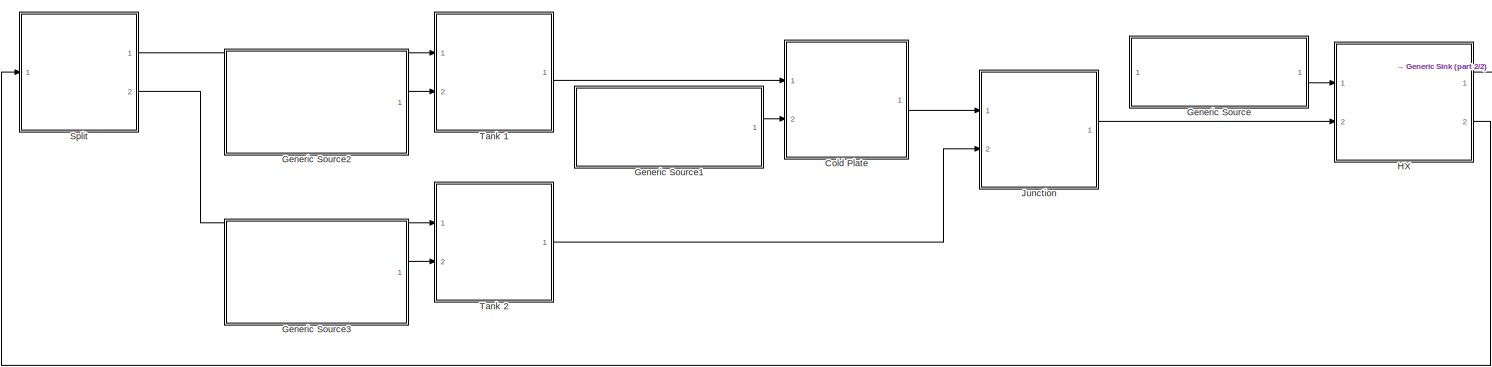
[diagram: root canvas - part 1/2, most of the canvas]
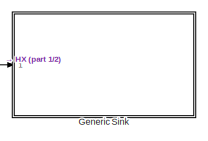
[diagram: root canvas - part 2/2, top right region]
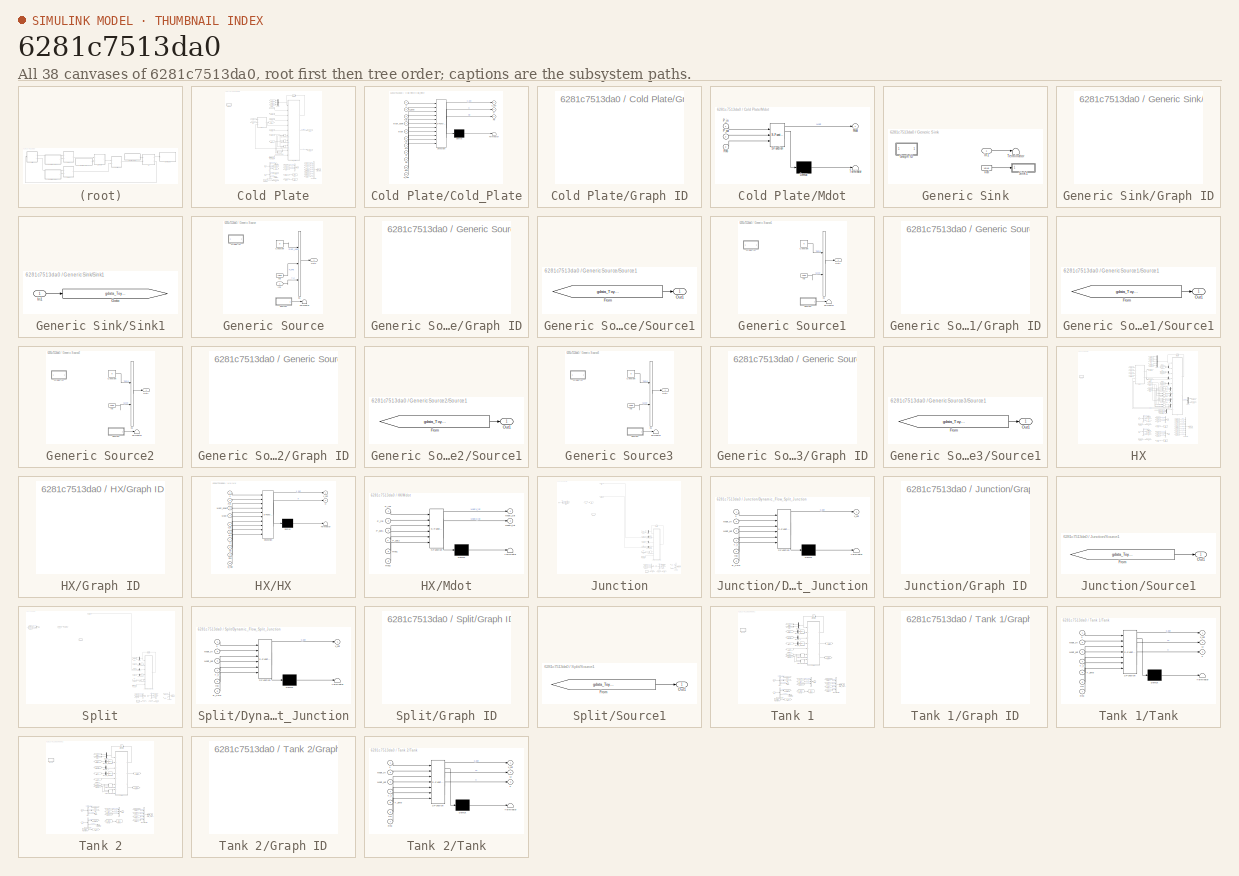
[diagram: thumbnail index - all 38 canvases of the model, root first then tree order]
MODEL slx_6281c7513da0
KIND model
CONFIG AbsTol = auto
CONFIG EnableMultiTasking = off
CONFIG FixedStep = auto
CONFIG MaxStep = auto
CONFIG MinStep = auto
CONFIG RelTol = 1e-3
CONFIG SampleTimeConstraint = Unconstrained
CONFIG Solver = VariableStepAuto
CONFIG SolverName = VariableStepAuto
CONFIG StartTime = 0.0
CONFIG StopTime = 10.0
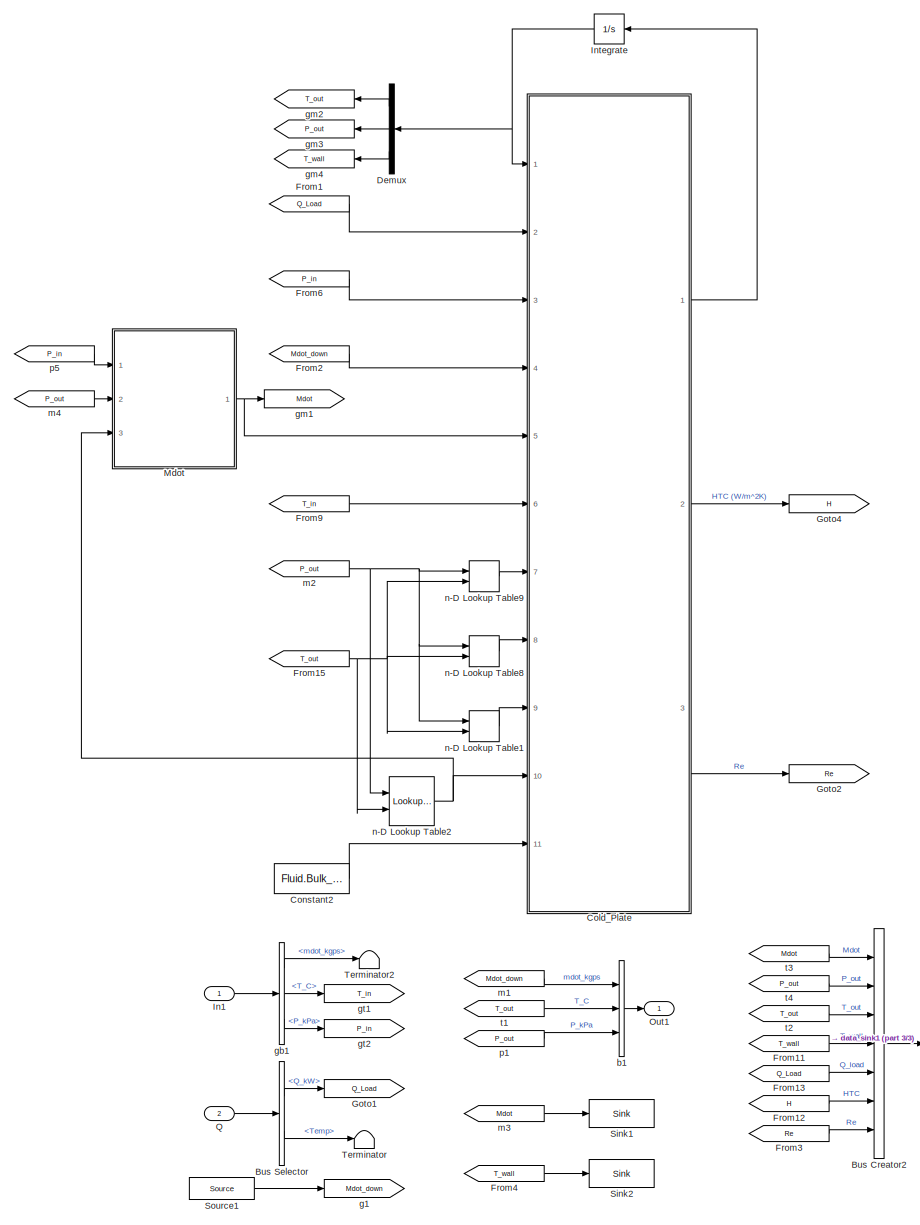
[diagram: Cold Plate - part 1/3, center side, full height]
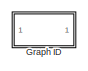
[diagram: Cold Plate - part 2/3, top left region]
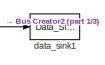
[diagram: Cold Plate - part 3/3, bottom right region]
BLOCK [SubSystem] Cold Plate
  AncestorBlock = DAEMOT_Lib/Thermal/Cold_Plate
  OpenFcn = load('Fluids.mat');\nSet_Fluid_Popup_Names( Fluid )
  Ports = [2, 1]
  RequestExecContextInheritance = off
BLOCK [BusCreator] Cold Plate/Bus Creator2
  DisplayOption = bar
  InheritFromInputs = on
  Inputs = 7
  Ports = [7, 1]
BLOCK [BusSelector] Cold Plate/Bus Selector
  OutputAsBus = off
  OutputSignals = Q_kW,Temp
  Ports = [1, 2]
BLOCK [SubSystem] Cold Plate/Cold_Plate
  Commented = on
  ErrorFcn = Stateflow.Translate.translate
  PermitHierarchicalResolution = ExplicitOnly
  Ports = [11, 3]
  RequestExecContextInheritance = off
  SFBlockType = MATLAB Function
  TreatAsAtomicUnit = on
BLOCK [Demux] Cold Plate/Cold_Plate/ Demux 
  Outputs = 1
  Ports = [1, 1]
BLOCK [S-Function] Cold Plate/Cold_Plate/ SFunction 
  EnableBusSupport = on
  FunctionName = sf_sfun
  Parameters = Cp_wall,D,E,HTC,HTC_method,KL,L,M_wall,PAF,dH,f,t,v
  PortCounts = [11 4]
  Ports = [11, 4]
  SFcnIsStateOwnerBlock = off
  SFunctionDeploymentMode = off
  Tag = Stateflow S-Function 54
BLOCK [Terminator] Cold Plate/Cold_Plate/ Terminator 
BLOCK [Inport] Cold Plate/Cold_Plate/Cp
  IconDisplay = Port number
  Port = 9
BLOCK [Inport] Cold Plate/Cold_Plate/E_fluid
  IconDisplay = Port number
  Port = 11
BLOCK [Outport] Cold Plate/Cold_Plate/H
  IconDisplay = Port number
  Port = 2
  VectorParamsAs1DForOutWhenUnconnected = off
BLOCK [Inport] Cold Plate/Cold_Plate/Mdot
  IconDisplay = Port number
  Port = 5
BLOCK [Inport] Cold Plate/Cold_Plate/Mdot_down
  IconDisplay = Port number
  Port = 4
BLOCK [Inport] Cold Plate/Cold_Plate/P_in
  IconDisplay = Port number
  Port = 3
BLOCK [Inport] Cold Plate/Cold_Plate/Q_load
  IconDisplay = Port number
  Port = 2
BLOCK [Outport] Cold Plate/Cold_Plate/Re
  IconDisplay = Port number
  Port = 3
  VectorParamsAs1DForOutWhenUnconnected = off
BLOCK [Inport] Cold Plate/Cold_Plate/Rho
  IconDisplay = Port number
  Port = 10
BLOCK [Inport] Cold Plate/Cold_Plate/T_in
  IconDisplay = Port number
  Port = 6
BLOCK [Inport] Cold Plate/Cold_Plate/k
  IconDisplay = Port number
  Port = 8
BLOCK [Inport] Cold Plate/Cold_Plate/mu
  IconDisplay = Port number
  Port = 7
BLOCK [Inport] Cold Plate/Cold_Plate/x
  IconDisplay = Port number
BLOCK [Outport] Cold Plate/Cold_Plate/x_dot
  IconDisplay = Port number
  VectorParamsAs1DForOutWhenUnconnected = off
BLOCK [Constant] Cold Plate/Constant2
  Commented = on
  Value = Fluid.Bulk_Mod
BLOCK [Demux] Cold Plate/Demux
  DisplayOption = bar
  Outputs = 3
  Ports = [1, 3]
BLOCK [From] Cold Plate/From1
  CloseFcn = tagdialog Close
  GotoTag = Q_Load
BLOCK [From] Cold Plate/From11
  CloseFcn = tagdialog Close
  GotoTag = T_wall
BLOCK [From] Cold Plate/From12
  CloseFcn = tagdialog Close
  GotoTag = H
BLOCK [From] Cold Plate/From13
  CloseFcn = tagdialog Close
  GotoTag = Q_Load
BLOCK [From] Cold Plate/From15
  CloseFcn = tagdialog Close
  GotoTag = T_out
BLOCK [From] Cold Plate/From2
  CloseFcn = tagdialog Close
  GotoTag = Mdot_down
BLOCK [From] Cold Plate/From3
  CloseFcn = tagdialog Close
  GotoTag = Re
BLOCK [From] Cold Plate/From4
  CloseFcn = tagdialog Close
  GotoTag = T_wall
BLOCK [From] Cold Plate/From6
  CloseFcn = tagdialog Close
  GotoTag = P_in
BLOCK [From] Cold Plate/From9
  CloseFcn = tagdialog Close
  GotoTag = T_in
BLOCK [Goto] Cold Plate/Goto1
  GotoTag = Q_Load
BLOCK [Goto] Cold Plate/Goto2
  GotoTag = Re
BLOCK [Goto] Cold Plate/Goto4
  GotoTag = H
BLOCK [SubSystem] Cold Plate/Graph ID
  Ports = []
  RequestExecContextInheritance = off
BLOCK [Inport] Cold Plate/In1
  IconDisplay = Port number
BLOCK [Integrator] Cold Plate/Integrate
  Commented = on
  InitialCondition = [T_init P_init Tw_init]
  Ports = [1, 1]
BLOCK [SubSystem] Cold Plate/Mdot
  Commented = on
  ErrorFcn = Stateflow.Translate.translate
  PermitHierarchicalResolution = ExplicitOnly
  Ports = [3, 1]
  RequestExecContextInheritance = off
  SFBlockType = MATLAB Function
  TreatAsAtomicUnit = on
BLOCK [Demux] Cold Plate/Mdot/ Demux 
  Outputs = 1
  Ports = [1, 1]
BLOCK [S-Function] Cold Plate/Mdot/ SFunction 
  EnableBusSupport = on
  FunctionName = sf_sfun
  Parameters = D,KL,L,dH,f
  PortCounts = [3 2]
  Ports = [3, 2]
  SFcnIsStateOwnerBlock = off
  SFunctionDeploymentMode = off
  Tag = Stateflow S-Function 55
BLOCK [Terminator] Cold Plate/Mdot/ Terminator 
BLOCK [Outport] Cold Plate/Mdot/Mdot
  IconDisplay = Port number
  VectorParamsAs1DForOutWhenUnconnected = off
BLOCK [Inport] Cold Plate/Mdot/P_in
  IconDisplay = Port number
BLOCK [Inport] Cold Plate/Mdot/P_out
  IconDisplay = Port number
  Port = 2
BLOCK [Inport] Cold Plate/Mdot/Rho
  IconDisplay = Port number
  Port = 3
BLOCK [Outport] Cold Plate/Out1
  IconDisplay = Port number
  VectorParamsAs1DForOutWhenUnconnected = off
BLOCK [Inport] Cold Plate/Q
  IconDisplay = Port number
  Port = 2
BLOCK [Reference] Cold Plate/Sink1  REF=DAEMOT_Lib/Support Functions/Sink
  Ports = [1]
  SourceBlock = DAEMOT_Lib/Support Functions/Sink
  SourceProductName = DAEMOT Toolset
  SourceType = Sink
BLOCK [Reference] Cold Plate/Sink2  REF=DAEMOT_Lib/Support Functions/Sink
  Ports = [1]
  SourceBlock = DAEMOT_Lib/Support Functions/Sink
  SourceProductName = DAEMOT Toolset
  SourceType = Sink
BLOCK [Reference] Cold Plate/Source1  REF=DAEMOT_Lib/Support Functions/Source
  Ports = [0, 1]
  SourceBlock = DAEMOT_Lib/Support Functions/Source
  SourceProductName = DAEMOT Toolset
  SourceType = Source
BLOCK [Terminator] Cold Plate/Terminator
BLOCK [Terminator] Cold Plate/Terminator2
BLOCK [BusCreator] Cold Plate/b1
  DisplayOption = bar
  InheritFromInputs = on
  Inputs = 3
  Ports = [3, 1]
BLOCK [Reference] Cold Plate/data_sink1  REF=DAEMOT_Lib/Support Functions/Data_Sink
  Ports = [1]
  SourceBlock = DAEMOT_Lib/Support Functions/Data_Sink
  SourceProductName = DAEMOT Toolset
  SourceType = Data Sink
BLOCK [Goto] Cold Plate/g1
  GotoTag = Mdot_down
BLOCK [BusSelector] Cold Plate/gb1
  OutputAsBus = off
  OutputSignals = mdot_kgps,T_C,P_kPa
  Ports = [1, 3]
BLOCK [Goto] Cold Plate/gm1
  GotoTag = Mdot
BLOCK [Goto] Cold Plate/gm2
  GotoTag = T_out
BLOCK [Goto] Cold Plate/gm3
  GotoTag = P_out
BLOCK [Goto] Cold Plate/gm4
  GotoTag = T_wall
BLOCK [Goto] Cold Plate/gt1
  GotoTag = T_in
BLOCK [Goto] Cold Plate/gt2
  GotoTag = P_in
BLOCK [From] Cold Plate/m1
  CloseFcn = tagdialog Close
  GotoTag = Mdot_down
BLOCK [From] Cold Plate/m2
  CloseFcn = tagdialog Close
  GotoTag = P_out
BLOCK [From] Cold Plate/m3
  CloseFcn = tagdialog Close
  GotoTag = Mdot
BLOCK [From] Cold Plate/m4
  CloseFcn = tagdialog Close
  GotoTag = P_out
BLOCK [Lookup_n-D] Cold Plate/n-D Lookup Table1
  BreakpointsForDimension1 = Fluid.P
  BreakpointsForDimension2 = Fluid.T
  BreakpointsForDimension3 = [5, 7]
  Commented = on
  ExtrapMethod = Clip
  Ports = [2, 1]
  RndMeth = Simplest
  Table = Fluid.C_pt
  UseLastTableValue = on
BLOCK [Lookup_n-D] Cold Plate/n-D Lookup Table2
  BreakpointsForDimension1 = Fluid.P
  BreakpointsForDimension2 = Fluid.T
  BreakpointsForDimension3 = [5, 7]
  Commented = on
  ExtrapMethod = Clip
  Ports = [2, 1]
  RndMeth = Simplest
  Table = Fluid.Rho_pt
  UseLastTableValue = on
BLOCK [Lookup_n-D] Cold Plate/n-D Lookup Table8
  BreakpointsForDimension1 = Fluid.P
  BreakpointsForDimension2 = Fluid.T
  BreakpointsForDimension3 = [5, 7]
  Commented = on
  ExtrapMethod = Clip
  Ports = [2, 1]
  RndMeth = Simplest
  Table = Fluid.K_pt
  UseLastTableValue = on
BLOCK [Lookup_n-D] Cold Plate/n-D Lookup Table9
  BreakpointsForDimension1 = Fluid.P
  BreakpointsForDimension2 = Fluid.T
  BreakpointsForDimension3 = [5, 7]
  Commented = on
  ExtrapMethod = Clip
  Ports = [2, 1]
  RndMeth = Simplest
  Table = Fluid.Mu_pt
  UseLastTableValue = on
BLOCK [From] Cold Plate/p1
  CloseFcn = tagdialog Close
  GotoTag = P_out
BLOCK [From] Cold Plate/p5
  CloseFcn = tagdialog Close
  GotoTag = P_in
BLOCK [From] Cold Plate/t1
  CloseFcn = tagdialog Close
  GotoTag = T_out
BLOCK [From] Cold Plate/t2
  CloseFcn = tagdialog Close
  GotoTag = T_out
BLOCK [From] Cold Plate/t3
  CloseFcn = tagdialog Close
  GotoTag = Mdot
BLOCK [From] Cold Plate/t4
  CloseFcn = tagdialog Close
  GotoTag = P_out
BLOCK [SubSystem] Generic Sink
  AncestorBlock = DAEMOT_Lib/Support Functions/Generic Sink
  CopyFcn = h      = get_param(gcb,'handle');   % Get block handle\nblk    = gcb; \n\nset_param(blk, 'LinkStatus', 'inactive')\nclear h\nclear blk
  Ports = [1]
  RequestExecContextInheritance = off
BLOCK [SubSystem] Generic Sink/Graph ID
  Ports = []
  RequestExecContextInheritance = off
BLOCK [Inport] Generic Sink/In1
  IconDisplay = Port number
BLOCK [SubSystem] Generic Sink/Sink1
  CopyFcn = rev_comms_sink();
  InitFcn = rev_comms_sink();
  LoadFcn = rev_comms_sink();
  NameChangeFcn = rev_comms_sink();
  Ports = [1]
  RequestExecContextInheritance = off
BLOCK [Goto] Generic Sink/Sink1/Goto
  GotoTag = gdata_ToySystemGenericSinkSink1
  TagVisibility = global
BLOCK [Inport] Generic Sink/Sink1/In1
  IconDisplay = Port number
BLOCK [Terminator] Generic Sink/Terminator
BLOCK [Constant] Generic Sink/val
  Value = value
BLOCK [SubSystem] Generic Source
  AncestorBlock = DAEMOT_Lib/Support Functions/Generic Source
  CopyFcn = h      = get_param(gcb,'handle');   % Get block handle\nblk    = gcb; \n\nset_param(blk, 'LinkStatus', 'inactive')\nclear h\nclear blk
  Ports = [1, 1]
  RequestExecContextInheritance = off
BLOCK [Constant] Generic Source/Constant
  Value = 0
BLOCK [SubSystem] Generic Source/Graph ID
  Ports = []
  RequestExecContextInheritance = off
BLOCK [Inport] Generic Source/In2
  IconDisplay = Port number
BLOCK [Outport] Generic Source/Out1
  IconDisplay = Port number
  VectorParamsAs1DForOutWhenUnconnected = off
BLOCK [SubSystem] Generic Source/Source1
  Ports = [0, 1]
  RequestExecContextInheritance = off
BLOCK [From] Generic Source/Source1/From
  GotoTag = gdata_ToySystemHXSink1
  TagVisibility = global
BLOCK [Outport] Generic Source/Source1/Out1
  IconDisplay = Port number
  VectorParamsAs1DForOutWhenUnconnected = off
BLOCK [Terminator] Generic Source/Terminator
BLOCK [BusCreator] Generic Source/b1
  DisplayOption = bar
  InheritFromInputs = on
  Inputs = 3
  Ports = [3, 1]
BLOCK [Constant] Generic Source/val
  Value = value
BLOCK [SubSystem] Generic Source1
  AncestorBlock = DAEMOT_Lib/Support Functions/Generic Source
  CopyFcn = h      = get_param(gcb,'handle');   % Get block handle\nblk    = gcb; \n\nset_param(blk, 'LinkStatus', 'inactive')\nclear h\nclear blk
  Ports = [0, 1]
  RequestExecContextInheritance = off
BLOCK [Constant] Generic Source1/Constant
  Value = 0
BLOCK [SubSystem] Generic Source1/Graph ID
  Ports = []
  RequestExecContextInheritance = off
BLOCK [Outport] Generic Source1/Out1
  IconDisplay = Port number
  VectorParamsAs1DForOutWhenUnconnected = off
BLOCK [SubSystem] Generic Source1/Source1
  Ports = [0, 1]
  RequestExecContextInheritance = off
BLOCK [From] Generic Source1/Source1/From
  GotoTag = gdata_ToySystemColdPlateSink2
  TagVisibility = global
BLOCK [Outport] Generic Source1/Source1/Out1
  IconDisplay = Port number
  VectorParamsAs1DForOutWhenUnconnected = off
BLOCK [Terminator] Generic Source1/Terminator
BLOCK [BusCreator] Generic Source1/b1
  DisplayOption = bar
  InheritFromInputs = on
  Inputs = 2
  Ports = [2, 1]
BLOCK [Constant] Generic Source1/val
  Value = value
BLOCK [SubSystem] Generic Source2
  AncestorBlock = DAEMOT_Lib/Support Functions/Generic Source
  CopyFcn = h      = get_param(gcb,'handle');   % Get block handle\nblk    = gcb; \n\nset_param(blk, 'LinkStatus', 'inactive')\nclear h\nclear blk
  Ports = [0, 1]
  RequestExecContextInheritance = off
BLOCK [Constant] Generic Source2/Constant
  Value = 0
BLOCK [SubSystem] Generic Source2/Graph ID
  Ports = []
  RequestExecContextInheritance = off
BLOCK [Outport] Generic Source2/Out1
  IconDisplay = Port number
  VectorParamsAs1DForOutWhenUnconnected = off
BLOCK [SubSystem] Generic Source2/Source1
  Ports = [0, 1]
  RequestExecContextInheritance = off
BLOCK [From] Generic Source2/Source1/From
  GotoTag = gdata_ToySystemColdPlateSink2
  TagVisibility = global
BLOCK [Outport] Generic Source2/Source1/Out1
  IconDisplay = Port number
  VectorParamsAs1DForOutWhenUnconnected = off
BLOCK [Terminator] Generic Source2/Terminator
BLOCK [BusCreator] Generic Source2/b1
  DisplayOption = bar
  InheritFromInputs = on
  Inputs = 2
  Ports = [2, 1]
BLOCK [Constant] Generic Source2/val
  Value = value
BLOCK [SubSystem] Generic Source3
  AncestorBlock = DAEMOT_Lib/Support Functions/Generic Source
  CopyFcn = h      = get_param(gcb,'handle');   % Get block handle\nblk    = gcb; \n\nset_param(blk, 'LinkStatus', 'inactive')\nclear h\nclear blk
  Ports = [0, 1]
  RequestExecContextInheritance = off
BLOCK [Constant] Generic Source3/Constant
  Value = 0
BLOCK [SubSystem] Generic Source3/Graph ID
  Ports = []
  RequestExecContextInheritance = off
BLOCK [Outport] Generic Source3/Out1
  IconDisplay = Port number
  VectorParamsAs1DForOutWhenUnconnected = off
BLOCK [SubSystem] Generic Source3/Source1
  Ports = [0, 1]
  RequestExecContextInheritance = off
BLOCK [From] Generic Source3/Source1/From
  GotoTag = gdata_ToySystemColdPlateSink2
  TagVisibility = global
BLOCK [Outport] Generic Source3/Source1/Out1
  IconDisplay = Port number
  VectorParamsAs1DForOutWhenUnconnected = off
BLOCK [Terminator] Generic Source3/Terminator
BLOCK [BusCreator] Generic Source3/b1
  DisplayOption = bar
  InheritFromInputs = on
  Inputs = 2
  Ports = [2, 1]
BLOCK [Constant] Generic Source3/val
  Value = value
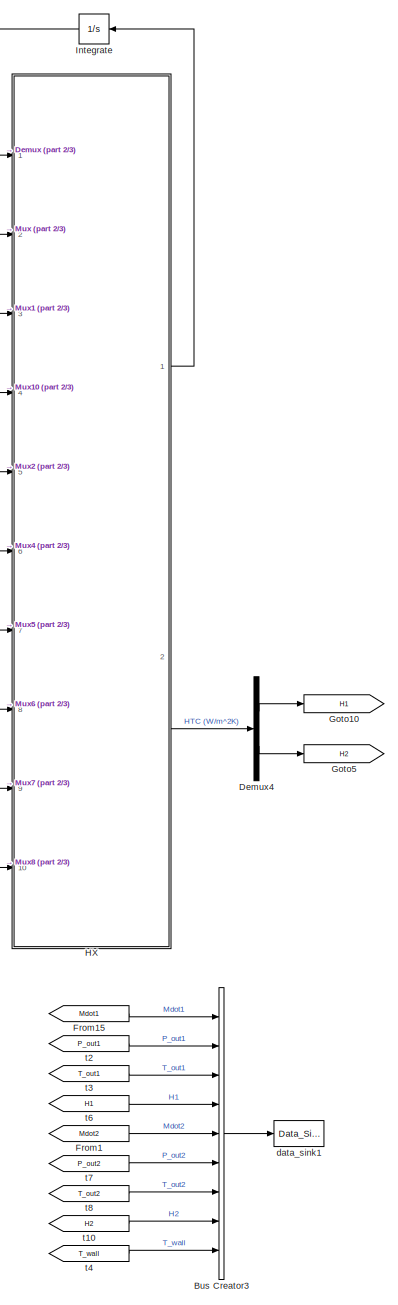
[diagram: HX - part 1/3, right side, full height]
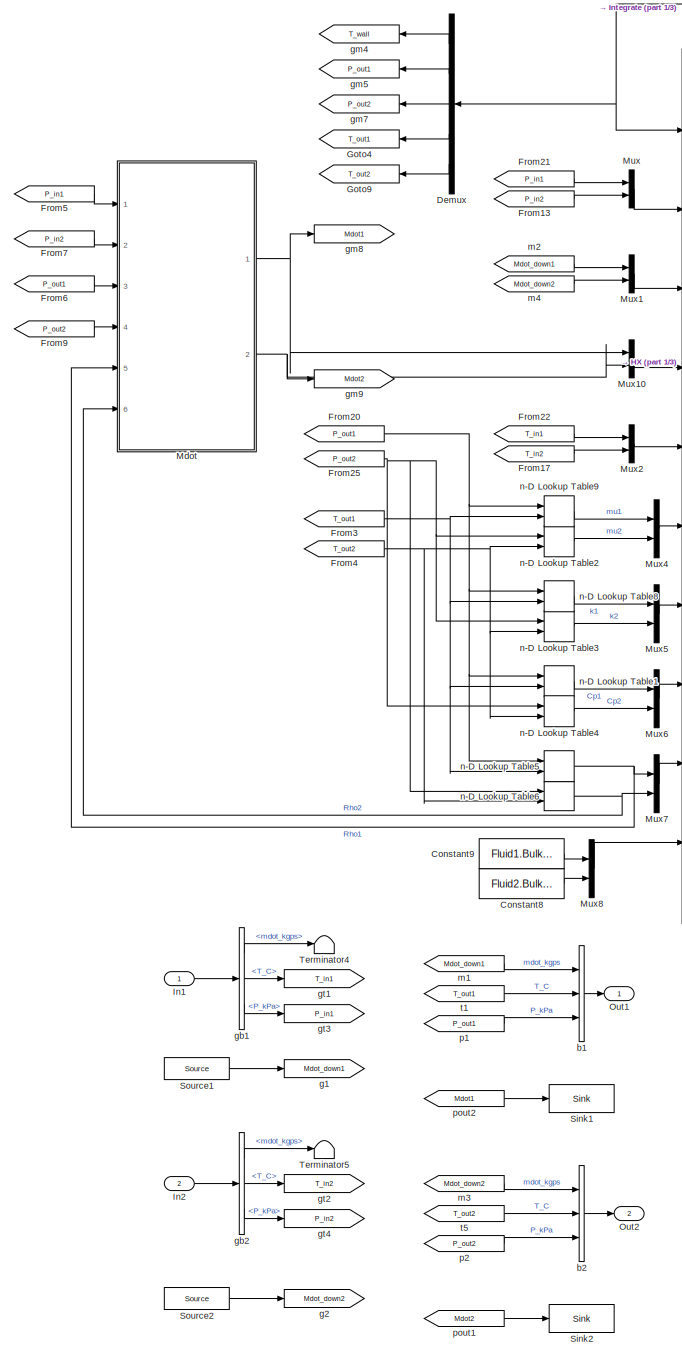
[diagram: HX - part 2/3, center side, full height]
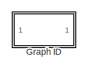
[diagram: HX - part 3/3, top left region]
BLOCK [SubSystem] HX
  AncestorBlock = DAEMOT_Lib/Thermal/Heat Exchanger
  OpenFcn = load('Fluids.mat');\nSet_Fluid_Popup_Names( Fluid )
  Ports = [2, 2]
  RequestExecContextInheritance = off
BLOCK [BusCreator] HX/Bus Creator3
  DisplayOption = bar
  InheritFromInputs = on
  Inputs = 9
  Ports = [9, 1]
BLOCK [Constant] HX/Constant8
  Commented = on
  Value = Fluid2.Bulk_Mod
BLOCK [Constant] HX/Constant9
  Commented = on
  Value = Fluid1.Bulk_Mod
BLOCK [Demux] HX/Demux
  DisplayOption = bar
  Outputs = 5
  Ports = [1, 5]
BLOCK [Demux] HX/Demux4
  DisplayOption = bar
  Outputs = 2
  Ports = [1, 2]
BLOCK [From] HX/From1
  CloseFcn = tagdialog Close
  GotoTag = Mdot2
BLOCK [From] HX/From13
  CloseFcn = tagdialog Close
  GotoTag = P_in2
BLOCK [From] HX/From15
  CloseFcn = tagdialog Close
  GotoTag = Mdot1
BLOCK [From] HX/From17
  CloseFcn = tagdialog Close
  GotoTag = T_in2
BLOCK [From] HX/From20
  CloseFcn = tagdialog Close
  GotoTag = P_out1
BLOCK [From] HX/From21
  CloseFcn = tagdialog Close
  GotoTag = P_in1
BLOCK [From] HX/From22
  CloseFcn = tagdialog Close
  GotoTag = T_in1
BLOCK [From] HX/From25
  CloseFcn = tagdialog Close
  GotoTag = P_out2
BLOCK [From] HX/From3
  CloseFcn = tagdialog Close
  GotoTag = T_out1
BLOCK [From] HX/From4
  CloseFcn = tagdialog Close
  GotoTag = T_out2
BLOCK [From] HX/From5
  CloseFcn = tagdialog Close
  GotoTag = P_in1
BLOCK [From] HX/From6
  CloseFcn = tagdialog Close
  GotoTag = P_out1
BLOCK [From] HX/From7
  CloseFcn = tagdialog Close
  GotoTag = P_in2
BLOCK [From] HX/From9
  CloseFcn = tagdialog Close
  GotoTag = P_out2
BLOCK [Goto] HX/Goto10
  GotoTag = H1
BLOCK [Goto] HX/Goto4
  GotoTag = T_out1
BLOCK [Goto] HX/Goto5
  GotoTag = H2
BLOCK [Goto] HX/Goto9
  GotoTag = T_out2
BLOCK [SubSystem] HX/Graph ID
  Ports = []
  RequestExecContextInheritance = off
BLOCK [SubSystem] HX/HX
  Commented = on
  ErrorFcn = Stateflow.Translate.translate
  PermitHierarchicalResolution = ExplicitOnly
  Ports = [10, 2]
  RequestExecContextInheritance = off
  SFBlockType = MATLAB Function
  TreatAsAtomicUnit = on
BLOCK [Demux] HX/HX/ Demux 
  Outputs = 1
  Ports = [1, 1]
BLOCK [S-Function] HX/HX/ SFunction 
  EnableBusSupport = on
  FunctionName = sf_sfun
  Parameters = Cp_wall,HTC1,HTC2,HTC_method1,HTC_method2,KL1,KL2,L1,L2,M_wall,Nu_lam1,Nu_lam2,Pass1,Pass2,W1,W2,b1,b2,dH1,dH2,f1,f2
  PortCounts = [10 3]
  Ports = [10, 3]
  SFcnIsStateOwnerBlock = off
  SFunctionDeploymentMode = off
  Tag = Stateflow S-Function 4
BLOCK [Terminator] HX/HX/ Terminator 
BLOCK [Inport] HX/HX/Cp
  IconDisplay = Port number
  Port = 8
BLOCK [Inport] HX/HX/E_fluid
  IconDisplay = Port number
  Port = 10
BLOCK [Outport] HX/HX/H
  IconDisplay = Port number
  Port = 2
  VectorParamsAs1DForOutWhenUnconnected = off
BLOCK [Inport] HX/HX/Mdot
  IconDisplay = Port number
  Port = 4
BLOCK [Inport] HX/HX/Mdot_down
  IconDisplay = Port number
  Port = 3
BLOCK [Inport] HX/HX/P_in
  IconDisplay = Port number
  Port = 2
BLOCK [Inport] HX/HX/Rho
  IconDisplay = Port number
  Port = 9
BLOCK [Inport] HX/HX/T_in
  IconDisplay = Port number
  Port = 5
BLOCK [Inport] HX/HX/k
  IconDisplay = Port number
  Port = 7
BLOCK [Inport] HX/HX/mu
  IconDisplay = Port number
  Port = 6
BLOCK [Inport] HX/HX/x
  IconDisplay = Port number
BLOCK [Outport] HX/HX/x_dot
  IconDisplay = Port number
  VectorParamsAs1DForOutWhenUnconnected = off
BLOCK [Inport] HX/In1
  IconDisplay = Port number
BLOCK [Inport] HX/In2
  IconDisplay = Port number
  Port = 2
BLOCK [Integrator] HX/Integrate
  Commented = on
  InitialCondition = [Tw_init P1_init P2_init T1_init T2_init]
  Ports = [1, 1]
BLOCK [SubSystem] HX/Mdot
  Commented = on
  ErrorFcn = Stateflow.Translate.translate
  PermitHierarchicalResolution = ExplicitOnly
  Ports = [6, 2]
  RequestExecContextInheritance = off
  SFBlockType = MATLAB Function
  TreatAsAtomicUnit = on
BLOCK [Demux] HX/Mdot/ Demux 
  Outputs = 1
  Ports = [1, 1]
BLOCK [S-Function] HX/Mdot/ SFunction 
  EnableBusSupport = on
  FunctionName = sf_sfun
  Parameters = KL1,KL2,L1,L2,Pass1,Pass2,W1,W2,b1,b2,dH1,dH2,f1,f2
  PortCounts = [6 3]
  Ports = [6, 3]
  SFcnIsStateOwnerBlock = off
  SFunctionDeploymentMode = off
  Tag = Stateflow S-Function 13
BLOCK [Terminator] HX/Mdot/ Terminator 
BLOCK [Outport] HX/Mdot/Mdot1_tot
  IconDisplay = Port number
  VectorParamsAs1DForOutWhenUnconnected = off
BLOCK [Outport] HX/Mdot/Mdot2_tot
  IconDisplay = Port number
  Port = 2
  VectorParamsAs1DForOutWhenUnconnected = off
BLOCK [Inport] HX/Mdot/P_in1
  IconDisplay = Port number
BLOCK [Inport] HX/Mdot/P_in2
  IconDisplay = Port number
  Port = 2
BLOCK [Inport] HX/Mdot/P_out1
  IconDisplay = Port number
  Port = 3
BLOCK [Inport] HX/Mdot/P_out2
  IconDisplay = Port number
  Port = 4
BLOCK [Inport] HX/Mdot/Rho1
  IconDisplay = Port number
  Port = 5
BLOCK [Inport] HX/Mdot/Rho2
  IconDisplay = Port number
  Port = 6
BLOCK [Mux] HX/Mux
  DisplayOption = bar
  Inputs = 2
  Ports = [2, 1]
BLOCK [Mux] HX/Mux1
  DisplayOption = bar
  Inputs = 2
  Ports = [2, 1]
BLOCK [Mux] HX/Mux10
  DisplayOption = bar
  Inputs = 2
  Ports = [2, 1]
BLOCK [Mux] HX/Mux2
  DisplayOption = bar
  Inputs = 2
  Ports = [2, 1]
BLOCK [Mux] HX/Mux4
  Commented = on
  DisplayOption = bar
  Inputs = 2
  Ports = [2, 1]
BLOCK [Mux] HX/Mux5
  Commented = on
  DisplayOption = bar
  Inputs = 2
  Ports = [2, 1]
BLOCK [Mux] HX/Mux6
  Commented = on
  DisplayOption = bar
  Inputs = 2
  Ports = [2, 1]
BLOCK [Mux] HX/Mux7
  Commented = on
  DisplayOption = bar
  Inputs = 2
  Ports = [2, 1]
BLOCK [Mux] HX/Mux8
  Commented = on
  DisplayOption = bar
  Inputs = 2
  Ports = [2, 1]
BLOCK [Outport] HX/Out1
  IconDisplay = Port number
  VectorParamsAs1DForOutWhenUnconnected = off
BLOCK [Outport] HX/Out2
  IconDisplay = Port number
  Port = 2
  VectorParamsAs1DForOutWhenUnconnected = off
BLOCK [Reference] HX/Sink1  REF=DAEMOT_Lib/Support Functions/Sink
  Ports = [1]
  SourceBlock = DAEMOT_Lib/Support Functions/Sink
  SourceProductName = DAEMOT Toolset
  SourceType = Sink
BLOCK [Reference] HX/Sink2  REF=DAEMOT_Lib/Support Functions/Sink
  Ports = [1]
  SourceBlock = DAEMOT_Lib/Support Functions/Sink
  SourceProductName = DAEMOT Toolset
  SourceType = Sink
BLOCK [Reference] HX/Source1  REF=DAEMOT_Lib/Support Functions/Source
  Ports = [0, 1]
  SourceBlock = DAEMOT_Lib/Support Functions/Source
  SourceProductName = DAEMOT Toolset
  SourceType = Source
BLOCK [Reference] HX/Source2  REF=DAEMOT_Lib/Support Functions/Source
  Ports = [0, 1]
  SourceBlock = DAEMOT_Lib/Support Functions/Source
  SourceProductName = DAEMOT Toolset
  SourceType = Source
BLOCK [Terminator] HX/Terminator4
BLOCK [Terminator] HX/Terminator5
BLOCK [BusCreator] HX/b1
  DisplayOption = bar
  InheritFromInputs = on
  Inputs = 3
  Ports = [3, 1]
BLOCK [BusCreator] HX/b2
  DisplayOption = bar
  InheritFromInputs = on
  Inputs = 3
  Ports = [3, 1]
BLOCK [Reference] HX/data_sink1  REF=DAEMOT_Lib/Support Functions/Data_Sink
  Ports = [1]
  SourceBlock = DAEMOT_Lib/Support Functions/Data_Sink
  SourceProductName = DAEMOT Toolset
  SourceType = Data Sink
BLOCK [Goto] HX/g1
  GotoTag = Mdot_down1
BLOCK [Goto] HX/g2
  GotoTag = Mdot_down2
BLOCK [BusSelector] HX/gb1
  OutputAsBus = off
  OutputSignals = mdot_kgps,T_C,P_kPa
  Ports = [1, 3]
BLOCK [BusSelector] HX/gb2
  OutputAsBus = off
  OutputSignals = mdot_kgps,T_C,P_kPa
  Ports = [1, 3]
BLOCK [Goto] HX/gm4
  GotoTag = T_wall
BLOCK [Goto] HX/gm5
  GotoTag = P_out1
BLOCK [Goto] HX/gm7
  GotoTag = P_out2
BLOCK [Goto] HX/gm8
  GotoTag = Mdot1
BLOCK [Goto] HX/gm9
  GotoTag = Mdot2
BLOCK [Goto] HX/gt1
  GotoTag = T_in1
BLOCK [Goto] HX/gt2
  GotoTag = T_in2
BLOCK [Goto] HX/gt3
  GotoTag = P_in1
BLOCK [Goto] HX/gt4
  GotoTag = P_in2
BLOCK [From] HX/m1
  CloseFcn = tagdialog Close
  GotoTag = Mdot_down1
BLOCK [From] HX/m2
  CloseFcn = tagdialog Close
  GotoTag = Mdot_down1
BLOCK [From] HX/m3
  CloseFcn = tagdialog Close
  GotoTag = Mdot_down2
BLOCK [From] HX/m4
  CloseFcn = tagdialog Close
  GotoTag = Mdot_down2
BLOCK [Lookup_n-D] HX/n-D Lookup Table1
  BreakpointsForDimension1 = Fluid1.P
  BreakpointsForDimension2 = Fluid1.T
  BreakpointsForDimension3 = [5, 7]
  Commented = on
  ExtrapMethod = Clip
  Ports = [2, 1]
  RndMeth = Simplest
  Table = Fluid1.C_pt
BLOCK [Lookup_n-D] HX/n-D Lookup Table2
  BreakpointsForDimension1 = Fluid2.P
  BreakpointsForDimension2 = Fluid2.T
  BreakpointsForDimension3 = [5, 7]
  Commented = on
  ExtrapMethod = Clip
  Ports = [2, 1]
  RndMeth = Simplest
  Table = Fluid2.Mu_pt
  UseLastTableValue = on
BLOCK [Lookup_n-D] HX/n-D Lookup Table3
  BreakpointsForDimension1 = Fluid2.P
  BreakpointsForDimension2 = Fluid2.T
  BreakpointsForDimension3 = [5, 7]
  Commented = on
  ExtrapMethod = Clip
  Ports = [2, 1]
  RndMeth = Simplest
  Table = Fluid2.K_pt
  UseLastTableValue = on
BLOCK [Lookup_n-D] HX/n-D Lookup Table4
  BreakpointsForDimension1 = Fluid2.P
  BreakpointsForDimension2 = Fluid2.T
  BreakpointsForDimension3 = [5, 7]
  Commented = on
  ExtrapMethod = Clip
  Ports = [2, 1]
  RndMeth = Simplest
  Table = Fluid2.C_pt
  UseLastTableValue = on
BLOCK [Lookup_n-D] HX/n-D Lookup Table5
  BreakpointsForDimension1 = Fluid1.P
  BreakpointsForDimension2 = Fluid1.T
  BreakpointsForDimension3 = [5, 7]
  Commented = on
  ExtrapMethod = Clip
  Ports = [2, 1]
  RndMeth = Simplest
  Table = Fluid1.Rho_pt
  UseLastTableValue = on
BLOCK [Lookup_n-D] HX/n-D Lookup Table6
  BreakpointsForDimension1 = Fluid2.P
  BreakpointsForDimension2 = Fluid2.T
  BreakpointsForDimension3 = [5, 7]
  Commented = on
  ExtrapMethod = Clip
  Ports = [2, 1]
  RndMeth = Simplest
  Table = Fluid2.Rho_pt
  UseLastTableValue = on
BLOCK [Lookup_n-D] HX/n-D Lookup Table8
  BreakpointsForDimension1 = Fluid1.P
  BreakpointsForDimension2 = Fluid1.T
  BreakpointsForDimension3 = [5, 7]
  Commented = on
  ExtrapMethod = Clip
  Ports = [2, 1]
  RndMeth = Simplest
  Table = Fluid1.K_pt
  UseLastTableValue = on
BLOCK [Lookup_n-D] HX/n-D Lookup Table9
  BreakpointsForDimension1 = Fluid1.P
  BreakpointsForDimension2 = Fluid1.T
  BreakpointsForDimension3 = [5, 7]
  Commented = on
  ExtrapMethod = Clip
  Ports = [2, 1]
  RndMeth = Simplest
  Table = Fluid1.Mu_pt
  UseLastTableValue = on
BLOCK [From] HX/p1
  CloseFcn = tagdialog Close
  GotoTag = P_out1
BLOCK [From] HX/p2
  CloseFcn = tagdialog Close
  GotoTag = P_out2
BLOCK [From] HX/pout1
  GotoTag = Mdot2
BLOCK [From] HX/pout2
  GotoTag = Mdot1
BLOCK [From] HX/t1
  CloseFcn = tagdialog Close
  GotoTag = T_out1
BLOCK [From] HX/t10
  CloseFcn = tagdialog Close
  GotoTag = H2
BLOCK [From] HX/t2
  CloseFcn = tagdialog Close
  GotoTag = P_out1
BLOCK [From] HX/t3
  CloseFcn = tagdialog Close
  GotoTag = T_out1
BLOCK [From] HX/t4
  CloseFcn = tagdialog Close
  GotoTag = T_wall
BLOCK [From] HX/t5
  CloseFcn = tagdialog Close
  GotoTag = T_out2
BLOCK [From] HX/t6
  CloseFcn = tagdialog Close
  GotoTag = H1
BLOCK [From] HX/t7
  CloseFcn = tagdialog Close
  GotoTag = P_out2
BLOCK [From] HX/t8
  CloseFcn = tagdialog Close
  GotoTag = T_out2
BLOCK [SubSystem] Junction
  AncestorBlock = DAEMOT_Lib/Thermal/Flow Split_Junction
  CopyFcn = h      = get_param(gcb,'handle');   % Get block handle\nblk    = gcb; \n\nset_param(blk, 'LinkStatus', 'inactive')
  OpenFcn = load('Fluids.mat');\nSet_Fluid_Popup_Names( Fluid )
  Ports = [2, 1]
  RequestExecContextInheritance = off
BLOCK [BusCreator] Junction/Bus Creator2
  DisplayOption = bar
  InheritFromInputs = on
  Inputs = 2
  Ports = [2, 1]
BLOCK [Constant] Junction/Constant5
  Commented = on
  Value = Fluid.Bulk_Mod
BLOCK [Demux] Junction/Demux
  DisplayOption = bar
  Outputs = 2
  Ports = [1, 2]
BLOCK [SubSystem] Junction/Dynamic_Flow_Split_Junction
  Commented = on
  ErrorFcn = Stateflow.Translate.translate
  PermitHierarchicalResolution = ExplicitOnly
  Ports = [6, 1]
  RequestExecContextInheritance = off
  SFBlockType = MATLAB Function
  TreatAsAtomicUnit = on
BLOCK [Demux] Junction/Dynamic_Flow_Split_Junction/ Demux 
  Outputs = 1
  Ports = [1, 1]
BLOCK [S-Function] Junction/Dynamic_Flow_Split_Junction/ SFunction 
  EnableBusSupport = on
  FunctionName = sf_sfun
  Parameters = D,E,L,t,v
  PortCounts = [6 2]
  Ports = [6, 2]
  SFcnIsStateOwnerBlock = off
  SFunctionDeploymentMode = off
  Tag = Stateflow S-Function 2
BLOCK [Terminator] Junction/Dynamic_Flow_Split_Junction/ Terminator 
BLOCK [Inport] Junction/Dynamic_Flow_Split_Junction/E_fluid
  IconDisplay = Port number
  Port = 6
BLOCK [Inport] Junction/Dynamic_Flow_Split_Junction/Mdot_in
  IconDisplay = Port number
  Port = 2
BLOCK [Inport] Junction/Dynamic_Flow_Split_Junction/Mdot_out
  IconDisplay = Port number
  Port = 3
BLOCK [Inport] Junction/Dynamic_Flow_Split_Junction/T_in
  IconDisplay = Port number
  Port = 4
BLOCK [Inport] Junction/Dynamic_Flow_Split_Junction/rho
  IconDisplay = Port number
  Port = 5
BLOCK [Inport] Junction/Dynamic_Flow_Split_Junction/x
  IconDisplay = Port number
BLOCK [Outport] Junction/Dynamic_Flow_Split_Junction/x_dot
  IconDisplay = Port number
  VectorParamsAs1DForOutWhenUnconnected = off
BLOCK [From] Junction/From11
  CloseFcn = tagdialog Close
  GotoTag = T
BLOCK [From] Junction/From12
  CloseFcn = tagdialog Close
  GotoTag = P
BLOCK [Goto] Junction/From13
  GotoTag = P
BLOCK [Goto] Junction/From14
  GotoTag = T
BLOCK [SubSystem] Junction/Graph ID
  Ports = []
  RequestExecContextInheritance = off
BLOCK [Inport] Junction/In1
  IconDisplay = Port number
BLOCK [Inport] Junction/In2
  IconDisplay = Port number
  Port = 2
BLOCK [Integrator] Junction/Integrator1
  Commented = on
  InitialCondition = [T_init P_init]
  Ports = [1, 1]
BLOCK [Mux] Junction/Mux_In_1
  DisplayOption = bar
  Inputs = 2
  Ports = [2, 1]
BLOCK [Mux] Junction/Mux_In_2
  DisplayOption = bar
  Inputs = 1
  Ports = [1, 1]
BLOCK [Mux] Junction/Mux_In_3
  DisplayOption = bar
  Inputs = 2
  Ports = [2, 1]
BLOCK [Outport] Junction/Out1
  IconDisplay = Port number
  VectorParamsAs1DForOutWhenUnconnected = off
BLOCK [From] Junction/Prho
  CloseFcn = tagdialog Close
  GotoTag = P
BLOCK [Selector] Junction/Selector1
  IndexOptions = Index vector (dialog)
  Indices = [1 2 ]
  InputPortWidth = 2
  OutputSizes = 1
  Ports = [1, 1]
BLOCK [Selector] Junction/Selector2
  IndexOptions = Index vector (dialog)
  Indices = [1 2 ]
  InputPortWidth = 2
  OutputSizes = 1
  Ports = [1, 1]
BLOCK [Reference] Junction/Sink1  REF=DAEMOT_Lib/Support Functions/Sink
  Ports = [1]
  SourceBlock = DAEMOT_Lib/Support Functions/Sink
  SourceProductName = DAEMOT Toolset
  SourceType = Sink
BLOCK [Reference] Junction/Sink2  REF=DAEMOT_Lib/Support Functions/Sink
  Ports = [1]
  SourceBlock = DAEMOT_Lib/Support Functions/Sink
  SourceProductName = DAEMOT Toolset
  SourceType = Sink
BLOCK [SubSystem] Junction/Source1
  Ports = [0, 1]
  RequestExecContextInheritance = off
BLOCK [From] Junction/Source1/From
  GotoTag = gdata_ToySystemHXSink2
  TagVisibility = global
BLOCK [Outport] Junction/Source1/Out1
  IconDisplay = Port number
  VectorParamsAs1DForOutWhenUnconnected = off
BLOCK [From] Junction/Trho
  CloseFcn = tagdialog Close
  GotoTag = T
BLOCK [BusCreator] Junction/b1
  DisplayOption = bar
  InheritFromInputs = on
  Inputs = 3
  Ports = [3, 1]
BLOCK [Reference] Junction/data_sink1  REF=DAEMOT_Lib/Support Functions/Data_Sink
  Ports = [1]
  SourceBlock = DAEMOT_Lib/Support Functions/Data_Sink
  SourceProductName = DAEMOT Toolset
  SourceType = Data Sink
BLOCK [Goto] Junction/g1
  GotoTag = M_out1
BLOCK [BusSelector] Junction/gb1
  OutputAsBus = off
  OutputSignals = mdot_kgps,T_C,P_kPa
  Ports = [1, 3]
BLOCK [BusSelector] Junction/gb2
  OutputAsBus = off
  OutputSignals = mdot_kgps,T_C,P_kPa
  Ports = [1, 3]
BLOCK [Goto] Junction/gm1
  GotoTag = M_in1
BLOCK [Goto] Junction/gm2
  GotoTag = M_in2
BLOCK [Terminator] Junction/gp1
BLOCK [Terminator] Junction/gp2
BLOCK [Goto] Junction/gt1
  GotoTag = T_in1
BLOCK [Goto] Junction/gt2
  GotoTag = T_in2
BLOCK [From] Junction/m1
  CloseFcn = tagdialog Close
  GotoTag = M_out1
BLOCK [From] Junction/min1
  CloseFcn = tagdialog Close
  GotoTag = M_in1
BLOCK [From] Junction/min2
  GotoTag = M_in2
BLOCK [From] Junction/mout1
  GotoTag = M_out1
BLOCK [Lookup_n-D] Junction/n-D Lookup Table2
  BreakpointsForDimension1 = Fluid.P
  BreakpointsForDimension2 = Fluid.T
  BreakpointsForDimension3 = [5, 7]
  Commented = on
  ExtrapMethod = Clip
  Ports = [2, 1]
  RndMeth = Simplest
  Table = Fluid.Rho_pt
  UseLastTableValue = on
BLOCK [From] Junction/p1
  CloseFcn = tagdialog Close
  GotoTag = P
BLOCK [From] Junction/pout1
  GotoTag = P
BLOCK [From] Junction/pout2
  GotoTag = P
BLOCK [From] Junction/t1
  CloseFcn = tagdialog Close
  GotoTag = T
BLOCK [From] Junction/tin1
  GotoTag = T_in1
BLOCK [From] Junction/tin2
  GotoTag = T_in2
BLOCK [SubSystem] Split
  AncestorBlock = DAEMOT_Lib/Thermal/Flow Split_Junction
  CopyFcn = h      = get_param(gcb,'handle');   % Get block handle\nblk    = gcb; \n\nset_param(blk, 'LinkStatus', 'inactive')
  OpenFcn = load('Fluids.mat');\nSet_Fluid_Popup_Names( Fluid )
  Ports = [1, 2]
  RequestExecContextInheritance = off
BLOCK [BusCreator] Split/Bus Creator2
  DisplayOption = bar
  InheritFromInputs = on
  Inputs = 2
  Ports = [2, 1]
BLOCK [Constant] Split/Constant5
  Commented = on
  Value = Fluid.Bulk_Mod
BLOCK [Demux] Split/Demux
  DisplayOption = bar
  Outputs = 2
  Ports = [1, 2]
BLOCK [SubSystem] Split/Dynamic_Flow_Split_Junction
  Commented = on
  ErrorFcn = Stateflow.Translate.translate
  PermitHierarchicalResolution = ExplicitOnly
  Ports = [6, 1]
  RequestExecContextInheritance = off
  SFBlockType = MATLAB Function
  TreatAsAtomicUnit = on
BLOCK [Demux] Split/Dynamic_Flow_Split_Junction/ Demux 
  Outputs = 1
  Ports = [1, 1]
BLOCK [S-Function] Split/Dynamic_Flow_Split_Junction/ SFunction 
  EnableBusSupport = on
  FunctionName = sf_sfun
  Parameters = D,E,L,t,v
  PortCounts = [6 2]
  Ports = [6, 2]
  SFcnIsStateOwnerBlock = off
  SFunctionDeploymentMode = off
  Tag = Stateflow S-Function 3
BLOCK [Terminator] Split/Dynamic_Flow_Split_Junction/ Terminator 
BLOCK [Inport] Split/Dynamic_Flow_Split_Junction/E_fluid
  IconDisplay = Port number
  Port = 6
BLOCK [Inport] Split/Dynamic_Flow_Split_Junction/Mdot_in
  IconDisplay = Port number
  Port = 2
BLOCK [Inport] Split/Dynamic_Flow_Split_Junction/Mdot_out
  IconDisplay = Port number
  Port = 3
BLOCK [Inport] Split/Dynamic_Flow_Split_Junction/T_in
  IconDisplay = Port number
  Port = 4
BLOCK [Inport] Split/Dynamic_Flow_Split_Junction/rho
  IconDisplay = Port number
  Port = 5
BLOCK [Inport] Split/Dynamic_Flow_Split_Junction/x
  IconDisplay = Port number
BLOCK [Outport] Split/Dynamic_Flow_Split_Junction/x_dot
  IconDisplay = Port number
  VectorParamsAs1DForOutWhenUnconnected = off
BLOCK [From] Split/From11
  CloseFcn = tagdialog Close
  GotoTag = T
BLOCK [From] Split/From12
  CloseFcn = tagdialog Close
  GotoTag = P
BLOCK [Goto] Split/From13
  GotoTag = P
BLOCK [Goto] Split/From14
  GotoTag = T
BLOCK [SubSystem] Split/Graph ID
  Ports = []
  RequestExecContextInheritance = off
BLOCK [Inport] Split/In1
  IconDisplay = Port number
BLOCK [Integrator] Split/Integrator1
  Commented = on
  InitialCondition = [T_init P_init]
  Ports = [1, 1]
BLOCK [Mux] Split/Mux_In_1
  DisplayOption = bar
  Inputs = 1
  Ports = [1, 1]
BLOCK [Mux] Split/Mux_In_2
  DisplayOption = bar
  Inputs = 2
  Ports = [2, 1]
BLOCK [Mux] Split/Mux_In_3
  DisplayOption = bar
  Inputs = 1
  Ports = [1, 1]
BLOCK [Outport] Split/Out1
  IconDisplay = Port number
  VectorParamsAs1DForOutWhenUnconnected = off
BLOCK [Outport] Split/Out2
  IconDisplay = Port number
  Port = 2
BLOCK [From] Split/Prho
  CloseFcn = tagdialog Close
  GotoTag = P
BLOCK [Selector] Split/Selector1
  IndexOptions = Index vector (dialog)
  Indices = [1 ]
  InputPortWidth = 1
  OutputSizes = 1
  Ports = [1, 1]
BLOCK [Selector] Split/Selector2
  IndexOptions = Index vector (dialog)
  Indices = [1 ]
  InputPortWidth = 1
  OutputSizes = 1
  Ports = [1, 1]
BLOCK [Reference] Split/Sink1  REF=DAEMOT_Lib/Support Functions/Sink
  Ports = [1]
  SourceBlock = DAEMOT_Lib/Support Functions/Sink
  SourceProductName = DAEMOT Toolset
  SourceType = Sink
BLOCK [SubSystem] Split/Source1
  Ports = [0, 1]
  RequestExecContextInheritance = off
BLOCK [From] Split/Source1/From
  GotoTag = gdata_ToySystemTank1Sink1
  TagVisibility = global
BLOCK [Outport] Split/Source1/Out1
  IconDisplay = Port number
  VectorParamsAs1DForOutWhenUnconnected = off
BLOCK [Reference] Split/Source2  REF=DAEMOT_Lib/Support Functions/Source
  Ports = [0, 1]
  SourceBlock = DAEMOT_Lib/Support Functions/Source
  SourceProductName = DAEMOT Toolset
  SourceType = Source
BLOCK [From] Split/Trho
  CloseFcn = tagdialog Close
  GotoTag = T
BLOCK [BusCreator] Split/b1
  DisplayOption = bar
  InheritFromInputs = on
  Inputs = 3
  Ports = [3, 1]
BLOCK [BusCreator] Split/b2
  DisplayOption = bar
  InheritFromInputs = on
  Inputs = 3
  Ports = [3, 1]
BLOCK [Reference] Split/data_sink1  REF=DAEMOT_Lib/Support Functions/Data_Sink
  Ports = [1]
  SourceBlock = DAEMOT_Lib/Support Functions/Data_Sink
  SourceProductName = DAEMOT Toolset
  SourceType = Data Sink
BLOCK [Goto] Split/g1
  GotoTag = M_out1
BLOCK [Goto] Split/g2
  GotoTag = M_out2
BLOCK [BusSelector] Split/gb1
  OutputAsBus = off
  OutputSignals = mdot_kgps,T_C,P_kPa
  Ports = [1, 3]
BLOCK [Goto] Split/gm1
  GotoTag = M_in1
BLOCK [Terminator] Split/gp1
BLOCK [Goto] Split/gt1
  GotoTag = T_in1
BLOCK [From] Split/m1
  CloseFcn = tagdialog Close
  GotoTag = M_out1
BLOCK [From] Split/m2
  GotoTag = M_out2
BLOCK [From] Split/min1
  CloseFcn = tagdialog Close
  GotoTag = M_in1
BLOCK [From] Split/mout1
  GotoTag = M_out1
BLOCK [From] Split/mout2
  GotoTag = M_out2
BLOCK [Lookup_n-D] Split/n-D Lookup Table2
  BreakpointsForDimension1 = Fluid.P
  BreakpointsForDimension2 = Fluid.T
  BreakpointsForDimension3 = [5, 7]
  Commented = on
  ExtrapMethod = Clip
  Ports = [2, 1]
  RndMeth = Simplest
  Table = Fluid.Rho_pt
  UseLastTableValue = on
BLOCK [From] Split/p1
  CloseFcn = tagdialog Close
  GotoTag = P
BLOCK [From] Split/p2
  GotoTag = P
BLOCK [From] Split/pout1
  GotoTag = P
BLOCK [From] Split/t1
  CloseFcn = tagdialog Close
  GotoTag = T
BLOCK [From] Split/t2
  GotoTag = T
BLOCK [From] Split/tin1
  GotoTag = T_in1
BLOCK [SubSystem] Tank 1
  AncestorBlock = DAEMOT_Lib/Thermal/Multi-Port Fluid Tank
  CopyFcn = h      = get_param(gcb,'handle');   % Get block handle\nblk    = gcb; \n\nset_param(blk, 'LinkStatus', 'inactive')
  OpenFcn = load('Fluids.mat');\nSet_Fluid_Popup_Names( Fluid )
  Ports = [2, 1]
  RequestExecContextInheritance = off
BLOCK [BusCreator] Tank 1/Bus Creator2
  DisplayOption = bar
  InheritFromInputs = on
  Inputs = 4
  Ports = [4, 1]
BLOCK [BusSelector] Tank 1/Bus Selector
  OutputAsBus = off
  OutputSignals = Q_kW,Temp
  Ports = [1, 2]
BLOCK [Demux] Tank 1/Demux
  DisplayOption = bar
  Outputs = 2
  Ports = [1, 2]
BLOCK [From] Tank 1/From11
  CloseFcn = tagdialog Close
  GotoTag = T_tank
BLOCK [From] Tank 1/From12
  CloseFcn = tagdialog Close
  GotoTag = P_tank
BLOCK [From] Tank 1/From13
  CloseFcn = tagdialog Close
  GotoTag = M_tank
BLOCK [From] Tank 1/From14
  CloseFcn = tagdialog Close
  GotoTag = h_tank
BLOCK [From] Tank 1/From16
  CloseFcn = tagdialog Close
  GotoTag = P_tank
BLOCK [From] Tank 1/From2
  CloseFcn = tagdialog Close
  GotoTag = T_tank
BLOCK [Goto] Tank 1/Goto1
  GotoTag = Q_Load
BLOCK [Goto] Tank 1/Goto2
  GotoTag = M_tank
BLOCK [Goto] Tank 1/Goto4
  GotoTag = h_tank
BLOCK [SubSystem] Tank 1/Graph ID
  Ports = []
  RequestExecContextInheritance = off
BLOCK [Inport] Tank 1/In1
  IconDisplay = Port number
BLOCK [Integrator] Tank 1/Integrate
  Commented = on
  InitialCondition = [T_init P_init]
  Ports = [1, 1]
BLOCK [Mux] Tank 1/Mux_In_1
  DisplayOption = bar
  Inputs = 1
  Ports = [1, 1]
BLOCK [Mux] Tank 1/Mux_In_2
  DisplayOption = bar
  Inputs = 1
  Ports = [1, 1]
BLOCK [Mux] Tank 1/Mux_In_3
  DisplayOption = bar
  Inputs = 1
  Ports = [1, 1]
BLOCK [Outport] Tank 1/Out1
  IconDisplay = Port number
  VectorParamsAs1DForOutWhenUnconnected = off
BLOCK [Inport] Tank 1/Q
  IconDisplay = Port number
  Port = 2
BLOCK [Selector] Tank 1/Selector1
  IndexOptions = Index vector (dialog)
  Indices = [1 ]
  InputPortWidth = 1
  OutputSizes = 1
  Ports = [1, 1]
BLOCK [Selector] Tank 1/Selector2
  IndexOptions = Index vector (dialog)
  Indices = [1 ]
  InputPortWidth = 1
  OutputSizes = 1
  Ports = [1, 1]
BLOCK [Reference] Tank 1/Sink1  REF=DAEMOT_Lib/Support Functions/Sink
  Ports = [1]
  SourceBlock = DAEMOT_Lib/Support Functions/Sink
  SourceProductName = DAEMOT Toolset
  SourceType = Sink
BLOCK [Reference] Tank 1/Source1  REF=DAEMOT_Lib/Support Functions/Source
  Ports = [0, 1]
  SourceBlock = DAEMOT_Lib/Support Functions/Source
  SourceProductName = DAEMOT Toolset
  SourceType = Source
BLOCK [SubSystem] Tank 1/Tank
  Commented = on
  ErrorFcn = Stateflow.Translate.translate
  PermitHierarchicalResolution = ExplicitOnly
  Ports = [7, 3]
  RequestExecContextInheritance = off
  SFBlockType = MATLAB Function
  TreatAsAtomicUnit = on
BLOCK [Demux] Tank 1/Tank/ Demux 
  Outputs = 1
  Ports = [1, 1]
BLOCK [S-Function] Tank 1/Tank/ SFunction 
  EnableBusSupport = on
  FunctionName = sf_sfun
  Parameters = D,H,Pamb
  PortCounts = [7 4]
  Ports = [7, 4]
  SFcnIsStateOwnerBlock = off
  SFunctionDeploymentMode = off
  Tag = Stateflow S-Function 22
BLOCK [Terminator] Tank 1/Tank/ Terminator 
BLOCK [Inport] Tank 1/Tank/Cp
  IconDisplay = Port number
  Port = 6
BLOCK [Outport] Tank 1/Tank/M
  IconDisplay = Port number
  Port = 2
  VectorParamsAs1DForOutWhenUnconnected = off
BLOCK [Inport] Tank 1/Tank/Mdot_in
  IconDisplay = Port number
  Port = 2
BLOCK [Inport] Tank 1/Tank/Mdot_out
  IconDisplay = Port number
  Port = 3
BLOCK [Inport] Tank 1/Tank/Rho
  IconDisplay = Port number
  Port = 7
BLOCK [Inport] Tank 1/Tank/T_amb
  IconDisplay = Port number
  Port = 5
BLOCK [Inport] Tank 1/Tank/T_in
  IconDisplay = Port number
  Port = 4
BLOCK [Outport] Tank 1/Tank/h
  IconDisplay = Port number
  Port = 3
  VectorParamsAs1DForOutWhenUnconnected = off
BLOCK [Inport] Tank 1/Tank/x
  IconDisplay = Port number
BLOCK [Outport] Tank 1/Tank/x_dot
  IconDisplay = Port number
  VectorParamsAs1DForOutWhenUnconnected = off
BLOCK [Terminator] Tank 1/Terminator
BLOCK [BusCreator] Tank 1/b1
  DisplayOption = bar
  InheritFromInputs = on
  Inputs = 3
  Ports = [3, 1]
BLOCK [Reference] Tank 1/data_sink1  REF=DAEMOT_Lib/Support Functions/Data_Sink
  Ports = [1]
  SourceBlock = DAEMOT_Lib/Support Functions/Data_Sink
  SourceProductName = DAEMOT Toolset
  SourceType = Data Sink
BLOCK [Goto] Tank 1/g1
  GotoTag = M_out1
BLOCK [BusSelector] Tank 1/gb1
  OutputAsBus = off
  OutputSignals = mdot_kgps,T_C,P_kPa
  Ports = [1, 3]
BLOCK [Goto] Tank 1/gm1
  GotoTag = M_in1
BLOCK [Goto] Tank 1/gm4
  GotoTag = T_tank
BLOCK [Goto] Tank 1/gm5
  GotoTag = P_tank
BLOCK [Terminator] Tank 1/gp1
BLOCK [Goto] Tank 1/gt1
  GotoTag = T_in1
BLOCK [From] Tank 1/m1
  CloseFcn = tagdialog Close
  GotoTag = M_out1
BLOCK [From] Tank 1/m4
  CloseFcn = tagdialog Close
  GotoTag = T_amb
BLOCK [From] Tank 1/min1
  CloseFcn = tagdialog Close
  GotoTag = M_in1
BLOCK [From] Tank 1/mout1
  GotoTag = M_out1
BLOCK [Lookup_n-D] Tank 1/n-D Lookup Table1
  BreakpointsForDimension1 = Fluid.P
  BreakpointsForDimension2 = Fluid.T
  BreakpointsForDimension3 = [5, 7]
  Commented = on
  ExtrapMethod = Clip
  Ports = [2, 1]
  RndMeth = Simplest
  Table = Fluid.C_pt
  UseLastTableValue = on
BLOCK [Lookup_n-D] Tank 1/n-D Lookup Table2
  BreakpointsForDimension1 = Fluid.P
  BreakpointsForDimension2 = Fluid.T
  BreakpointsForDimension3 = [5, 7]
  Commented = on
  ExtrapMethod = Clip
  Ports = [2, 1]
  RndMeth = Simplest
  Table = Fluid.Rho_pt
  UseLastTableValue = on
BLOCK [From] Tank 1/p1
  CloseFcn = tagdialog Close
  GotoTag = P_tank
BLOCK [From] Tank 1/pout1
  GotoTag = P_tank
BLOCK [From] Tank 1/t1
  CloseFcn = tagdialog Close
  GotoTag = T_tank
BLOCK [From] Tank 1/tin1
  GotoTag = T_in1
BLOCK [SubSystem] Tank 2
  AncestorBlock = DAEMOT_Lib/Thermal/Multi-Port Fluid Tank
  CopyFcn = h      = get_param(gcb,'handle');   % Get block handle\nblk    = gcb; \n\nset_param(blk, 'LinkStatus', 'inactive')
  OpenFcn = load('Fluids.mat');\nSet_Fluid_Popup_Names( Fluid )
  Ports = [2, 1]
  RequestExecContextInheritance = off
BLOCK [BusCreator] Tank 2/Bus Creator2
  DisplayOption = bar
  InheritFromInputs = on
  Inputs = 4
  Ports = [4, 1]
BLOCK [BusSelector] Tank 2/Bus Selector
  OutputAsBus = off
  OutputSignals = Q_kW,Temp
  Ports = [1, 2]
BLOCK [Demux] Tank 2/Demux
  DisplayOption = bar
  Outputs = 2
  Ports = [1, 2]
BLOCK [From] Tank 2/From11
  CloseFcn = tagdialog Close
  GotoTag = T_tank
BLOCK [From] Tank 2/From12
  CloseFcn = tagdialog Close
  GotoTag = P_tank
BLOCK [From] Tank 2/From13
  CloseFcn = tagdialog Close
  GotoTag = M_tank
BLOCK [From] Tank 2/From14
  CloseFcn = tagdialog Close
  GotoTag = h_tank
BLOCK [From] Tank 2/From16
  CloseFcn = tagdialog Close
  GotoTag = P_tank
BLOCK [From] Tank 2/From2
  CloseFcn = tagdialog Close
  GotoTag = T_tank
BLOCK [Goto] Tank 2/Goto1
  GotoTag = Q_Load
BLOCK [Goto] Tank 2/Goto2
  GotoTag = M_tank
BLOCK [Goto] Tank 2/Goto4
  GotoTag = h_tank
BLOCK [SubSystem] Tank 2/Graph ID
  Ports = []
  RequestExecContextInheritance = off
BLOCK [Inport] Tank 2/In1
  IconDisplay = Port number
BLOCK [Integrator] Tank 2/Integrate
  Commented = on
  InitialCondition = [T_init P_init]
  Ports = [1, 1]
BLOCK [Mux] Tank 2/Mux_In_1
  DisplayOption = bar
  Inputs = 1
  Ports = [1, 1]
BLOCK [Mux] Tank 2/Mux_In_2
  DisplayOption = bar
  Inputs = 1
  Ports = [1, 1]
BLOCK [Mux] Tank 2/Mux_In_3
  DisplayOption = bar
  Inputs = 1
  Ports = [1, 1]
BLOCK [Outport] Tank 2/Out1
  IconDisplay = Port number
  VectorParamsAs1DForOutWhenUnconnected = off
BLOCK [Inport] Tank 2/Q
  IconDisplay = Port number
  Port = 2
BLOCK [Selector] Tank 2/Selector1
  IndexOptions = Index vector (dialog)
  Indices = [1 ]
  InputPortWidth = 1
  OutputSizes = 1
  Ports = [1, 1]
BLOCK [Selector] Tank 2/Selector2
  IndexOptions = Index vector (dialog)
  Indices = [1 ]
  InputPortWidth = 1
  OutputSizes = 1
  Ports = [1, 1]
BLOCK [Reference] Tank 2/Sink1  REF=DAEMOT_Lib/Support Functions/Sink
  Ports = [1]
  SourceBlock = DAEMOT_Lib/Support Functions/Sink
  SourceProductName = DAEMOT Toolset
  SourceType = Sink
BLOCK [Reference] Tank 2/Source1  REF=DAEMOT_Lib/Support Functions/Source
  Ports = [0, 1]
  SourceBlock = DAEMOT_Lib/Support Functions/Source
  SourceProductName = DAEMOT Toolset
  SourceType = Source
BLOCK [SubSystem] Tank 2/Tank
  Commented = on
  ErrorFcn = Stateflow.Translate.translate
  PermitHierarchicalResolution = ExplicitOnly
  Ports = [7, 3]
  RequestExecContextInheritance = off
  SFBlockType = MATLAB Function
  TreatAsAtomicUnit = on
BLOCK [Demux] Tank 2/Tank/ Demux 
  Outputs = 1
  Ports = [1, 1]
BLOCK [S-Function] Tank 2/Tank/ SFunction 
  EnableBusSupport = on
  FunctionName = sf_sfun
  Parameters = D,H,Pamb
  PortCounts = [7 4]
  Ports = [7, 4]
  SFcnIsStateOwnerBlock = off
  SFunctionDeploymentMode = off
  Tag = Stateflow S-Function 1
BLOCK [Terminator] Tank 2/Tank/ Terminator 
BLOCK [Inport] Tank 2/Tank/Cp
  IconDisplay = Port number
  Port = 6
BLOCK [Outport] Tank 2/Tank/M
  IconDisplay = Port number
  Port = 2
  VectorParamsAs1DForOutWhenUnconnected = off
BLOCK [Inport] Tank 2/Tank/Mdot_in
  IconDisplay = Port number
  Port = 2
BLOCK [Inport] Tank 2/Tank/Mdot_out
  IconDisplay = Port number
  Port = 3
BLOCK [Inport] Tank 2/Tank/Rho
  IconDisplay = Port number
  Port = 7
BLOCK [Inport] Tank 2/Tank/T_amb
  IconDisplay = Port number
  Port = 5
BLOCK [Inport] Tank 2/Tank/T_in
  IconDisplay = Port number
  Port = 4
BLOCK [Outport] Tank 2/Tank/h
  IconDisplay = Port number
  Port = 3
  VectorParamsAs1DForOutWhenUnconnected = off
BLOCK [Inport] Tank 2/Tank/x
  IconDisplay = Port number
BLOCK [Outport] Tank 2/Tank/x_dot
  IconDisplay = Port number
  VectorParamsAs1DForOutWhenUnconnected = off
BLOCK [Terminator] Tank 2/Terminator
BLOCK [BusCreator] Tank 2/b1
  DisplayOption = bar
  InheritFromInputs = on
  Inputs = 3
  Ports = [3, 1]
BLOCK [Reference] Tank 2/data_sink1  REF=DAEMOT_Lib/Support Functions/Data_Sink
  Ports = [1]
  SourceBlock = DAEMOT_Lib/Support Functions/Data_Sink
  SourceProductName = DAEMOT Toolset
  SourceType = Data Sink
BLOCK [Goto] Tank 2/g1
  GotoTag = M_out1
BLOCK [BusSelector] Tank 2/gb1
  OutputAsBus = off
  OutputSignals = mdot_kgps,T_C,P_kPa
  Ports = [1, 3]
BLOCK [Goto] Tank 2/gm1
  GotoTag = M_in1
BLOCK [Goto] Tank 2/gm4
  GotoTag = T_tank
BLOCK [Goto] Tank 2/gm5
  GotoTag = P_tank
BLOCK [Terminator] Tank 2/gp1
BLOCK [Goto] Tank 2/gt1
  GotoTag = T_in1
BLOCK [From] Tank 2/m1
  CloseFcn = tagdialog Close
  GotoTag = M_out1
BLOCK [From] Tank 2/m4
  CloseFcn = tagdialog Close
  GotoTag = T_amb
BLOCK [From] Tank 2/min1
  CloseFcn = tagdialog Close
  GotoTag = M_in1
BLOCK [From] Tank 2/mout1
  GotoTag = M_out1
BLOCK [Lookup_n-D] Tank 2/n-D Lookup Table1
  BreakpointsForDimension1 = Fluid.P
  BreakpointsForDimension2 = Fluid.T
  BreakpointsForDimension3 = [5, 7]
  Commented = on
  ExtrapMethod = Clip
  Ports = [2, 1]
  RndMeth = Simplest
  Table = Fluid.C_pt
  UseLastTableValue = on
BLOCK [Lookup_n-D] Tank 2/n-D Lookup Table2
  BreakpointsForDimension1 = Fluid.P
  BreakpointsForDimension2 = Fluid.T
  BreakpointsForDimension3 = [5, 7]
  Commented = on
  ExtrapMethod = Clip
  Ports = [2, 1]
  RndMeth = Simplest
  Table = Fluid.Rho_pt
  UseLastTableValue = on
BLOCK [From] Tank 2/p1
  CloseFcn = tagdialog Close
  GotoTag = P_tank
BLOCK [From] Tank 2/pout1
  GotoTag = P_tank
BLOCK [From] Tank 2/t1
  CloseFcn = tagdialog Close
  GotoTag = T_tank
BLOCK [From] Tank 2/tin1
  GotoTag = T_in1
LINE Cold Plate:1 -> Junction:1
LINE Generic Source1:1 -> Cold Plate:2
LINE Generic Source2:1 -> Tank 1:2
LINE Generic Source3:1 -> Tank 2:2
LINE Generic Source:1 -> HX:1
LINE HX:1 -> Generic Sink:1
LINE HX:2 -> Split:1
LINE Junction:1 -> HX:2
LINE Split:1 -> Tank 1:1
LINE Split:2 -> Tank 2:1
LINE Tank 1:1 -> Cold Plate:1
LINE Tank 2:1 -> Junction:2
CHART Tank 2/Tank states=1 transitions=1
  STATE_LABEL 'eML_blk_kernel()'
  STATE_LABEL 'SCRIPT:\nfunction [x_dot,M,h]= Tank(x,Mdot_in,Mdot_out,T_in,T_amb,Cp,Rho,H,D,Pamb)\n\n% Constants and Conversions\nMdot_in_tot     = sum(Mdot_in);     % Total mass flow rate in\nMdot_out_tot    = sum(Mdot_out);    % Total mass flow rate out\nA_cross = pi*D^2/4;             % Cross-sectional area\nCp      = 1000*Cp;              % Convert Cp from J/g*K to J/kg*K\ng       = 9.81;                 % Gravitati...<+631ch>'
CHART Junction/Dynamic_Flow_Split_Junction states=1 transitions=1
  STATE_LABEL 'eML_blk_kernel()'
  STATE_LABEL 'SCRIPT:\nfunction x_dot  = Dynamic_Flow_Split_Junction(x,Mdot_in,Mdot_out,T_in,D,L,t,E,v,rho,E_fluid)\n\n% Constants and Conversions\nMdot_in_tot     = sum(Mdot_in);     % Total mass flow rate in\nMdot_out_tot    = sum(Mdot_out);    % Total mass flow rate out\nV               = pi*D^2/4*L;       % Volume\n\n% Parse states\nT      = x(1);                  % Temperature of the tank\nP      = x(2);            ...<+296ch>'
CHART Split/Dynamic_Flow_Split_Junction states=1 transitions=1
  STATE_LABEL 'eML_blk_kernel()'
  STATE_LABEL 'SCRIPT:\nfunction x_dot  = Dynamic_Flow_Split_Junction(x,Mdot_in,Mdot_out,T_in,D,L,t,E,v,rho,E_fluid)\n\n% Constants and Conversions\nMdot_in_tot     = sum(Mdot_in);     % Total mass flow rate in\nMdot_out_tot    = sum(Mdot_out);    % Total mass flow rate out\nV               = pi*D^2/4*L;       % Volume\n\n% Parse states\nT      = x(1);                  % Temperature of the tank\nP      = x(2);            ...<+296ch>'
CHART HX/HX states=1 transitions=1
  STATE_LABEL 'eML_blk_kernel()'
  STATE_LABEL 'SCRIPT:\nfunction [x_dot,H]  = HX(x,P_in,Mdot_down,Mdot,T_in,mu,k,Cp,Rho,E_fluid,M_wall,Cp_wall,Pass1,Pass2,f1,f2,KL1,KL2,b1,b2,W1,W2,L1,L2,Nu_lam1,Nu_lam2,dH1,dH2,HTC_method1, HTC_method2, HTC1, HTC2)\n\n% Parse data\nP_in1       = P_in(1);\nP_in2       = P_in(2);\nMdot_down1  = Mdot_down(1);\nMdot_down2  = Mdot_down(2);\nMdot1       = Mdot(1);\nMdot2       = Mdot(2);\nT_in1       = T_in(1);\nT_in2       = ...<+3608ch>'
CHART HX/Mdot states=1 transitions=1
  STATE_LABEL 'eML_blk_kernel()'
  STATE_LABEL 'SCRIPT:\nfunction [Mdot1_tot,Mdot2_tot]   = Mdot(P_in1,P_in2,P_out1,P_out2,Rho1,Rho2,f1,f2,b1,b2,W1,W2,L1,L2,KL1,KL2,Pass1,Pass2,dH1,dH2)\n\n% Constants and Conversions\ng           = 9.81;                 % Gravitational acceleration [m/s^2]\nD1 = 4*b1*W1/(2*b1+2*W1);           % (see Incropera, Eq. 8.66)\nD2 = 4*b2*W2/(2*b2+2*W2);           % (see Incropera, Eq. 8.66)\ndP1         = (P_in1-P_out1)*1000...<+822ch>'
CHART Tank 1/Tank states=1 transitions=1
  STATE_LABEL 'eML_blk_kernel()'
  STATE_LABEL 'SCRIPT:\nfunction [x_dot,M,h]= Tank(x,Mdot_in,Mdot_out,T_in,T_amb,Cp,Rho,H,D,Pamb)\n\n% Constants and Conversions\nMdot_in_tot     = sum(Mdot_in);     % Total mass flow rate in\nMdot_out_tot    = sum(Mdot_out);    % Total mass flow rate out\nA_cross = pi*D^2/4;             % Cross-sectional area\nCp      = 1000*Cp;              % Convert Cp from J/g*K to J/kg*K\ng       = 9.81;                 % Gravitati...<+631ch>'
CHART Cold Plate/Cold_Plate states=1 transitions=1
  STATE_LABEL 'eML_blk_kernel()'
  STATE_LABEL 'SCRIPT:\nfunction [x_dot,H,Re]  = Cold_Plate(x,Q_load,P_in,Mdot_down,Mdot,T_in,mu,k,Cp,Rho,E_fluid,f,M_wall,Cp_wall,D,L,t,E,v,KL,dH,PAF,HTC_method, HTC)\n\n% Constants and Conversions\ng       = 9.81;                 % Gravitational acceleration [m/s^2]\nA_ht    = pi*L*D;                  % Heat transfer area\nV       = L*pi*D^2/4;              % Volume\nC_wall  = M_wall*Cp_wall;          % Heat Capacita...<+1558ch>'
CHART Cold Plate/Mdot states=1 transitions=1
  STATE_LABEL 'eML_blk_kernel()'
  STATE_LABEL 'SCRIPT:\nfunction Mdot = Mdot(P_in,P_out,Rho,f,D,L,KL,dH)\n\n% Constants and Conversions\ng           = 9.81;                 % Gravitational acceleration [m/s^2]\nA_cross     = pi*D^2/4;             % Cross sectional area\ndP          = (P_in-P_out)*1000;    % Pressure differential [Pa]\ndP          = dP + Rho*g*dH;        % Pressure differential corrected for hieght\num          = max(0,sign(dP)*sqrt_Li...<+143ch>'
